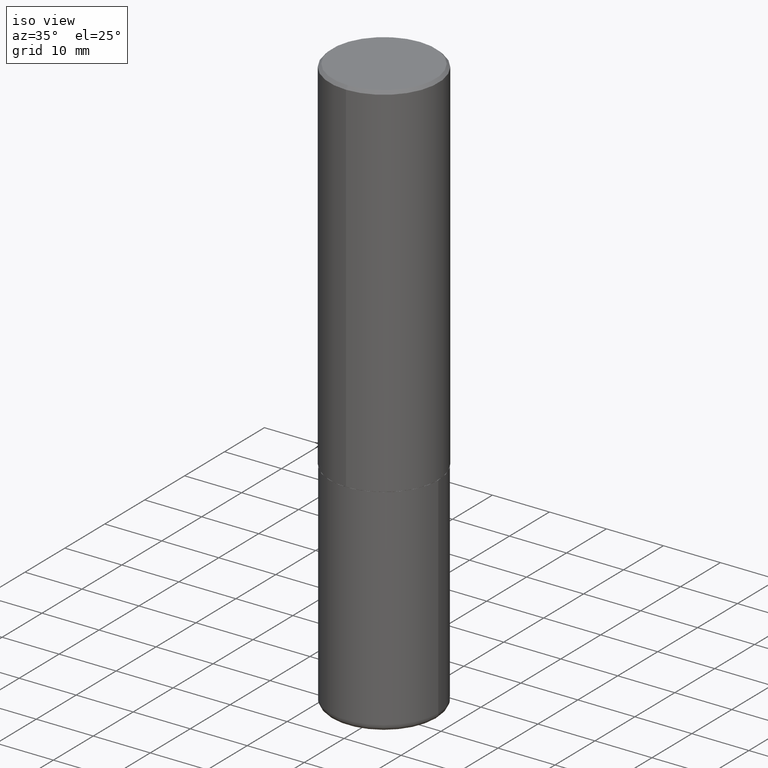
[diagram: clean part render]
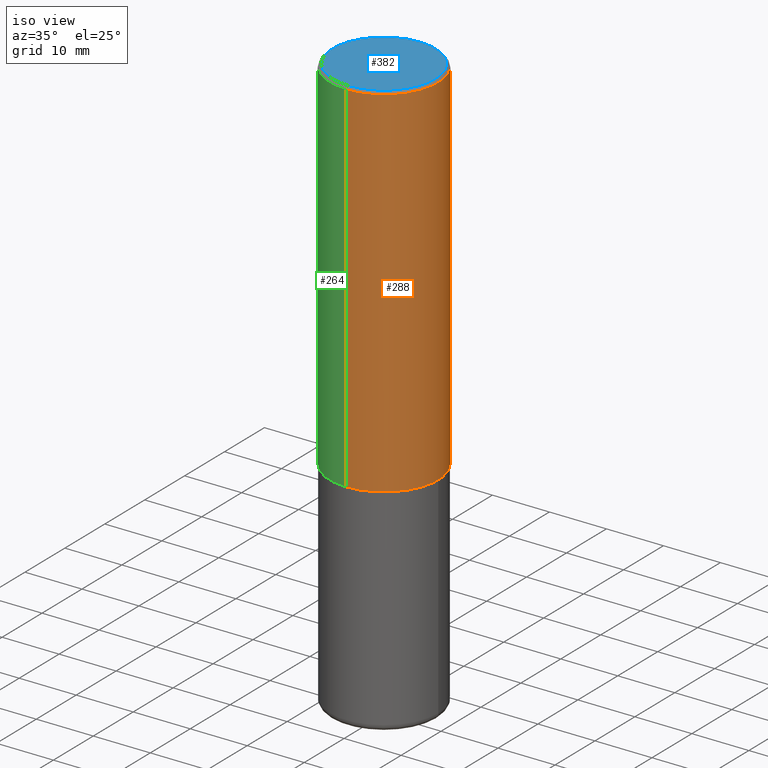
[diagram: same view with three faces highlighted in distinct colors, each labeled with its STEP entity id]
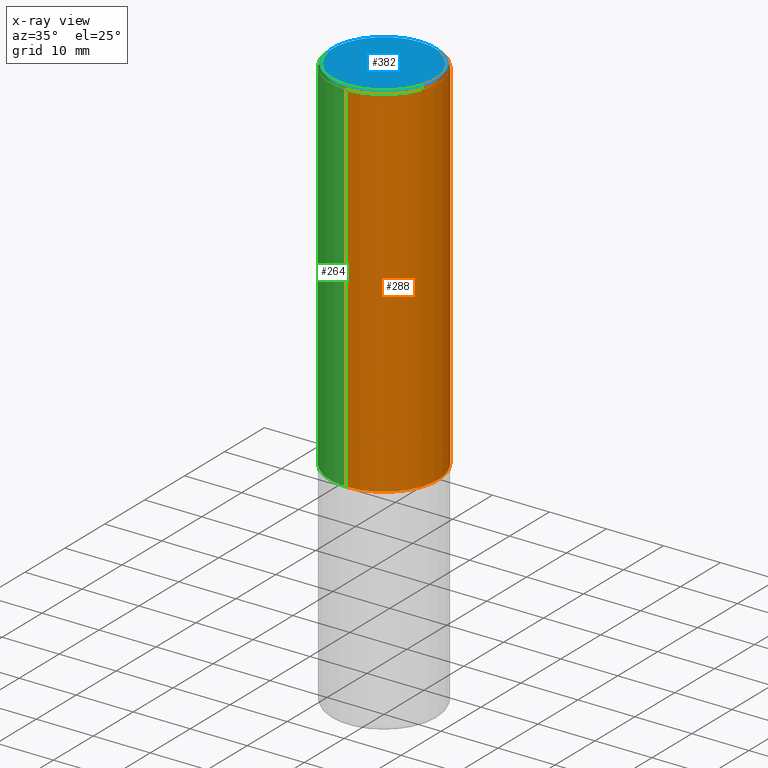
[diagram: x-ray of the same camera — body ghosted, the three highlighted faces saturated]
A machine part, iso view with three faces highlighted in distinct colors.
The next image is the same camera in x-ray (body ghosted, the three faces saturated) — at least one of them is partly hidden behind the body in this view.
Their STEP definitions:

[orange] entity #288 — the highlighted cylindrical surface (partial cylindrical patch) has radius 9.525 mm, axis along (-0, 0, 1).
#10 = CARTESIAN_POINT ( 'NONE',  ( 2.618611004132350411E-15, 0.3749999999999999445, -0.02000000000000139513 ) ) ;
#13 = CARTESIAN_POINT ( 'NONE',  ( 0.000000000000000000, 0.000000000000000000, 0.000000000000000000 ) ) ;
#37 = VERTEX_POINT ( 'NONE', #10 ) ;
#38 = ORIENTED_EDGE ( 'NONE', *, *, #179, .F. ) ;
#39 = VERTEX_POINT ( 'NONE', #77 ) ;
#40 = VECTOR ( 'NONE', #275, 39.37007874015748143 ) ;
#77 = CARTESIAN_POINT ( 'NONE',  ( -2.618611004132290852E-15, -0.3750000000000090483, -2.498999999999998778 ) ) ;
#93 = DIRECTION ( 'NONE',  ( -2.446218909101186334E-29, 3.490407148774155485E-15, 1.000000000000000000 ) ) ;
#112 = DIRECTION ( 'NONE',  ( -2.446218909101186334E-29, 3.490407148774155485E-15, 1.000000000000000000 ) ) ;
#114 = EDGE_CURVE ( 'NONE', #39, #144, #131, .T. ) ;
#116 = FACE_OUTER_BOUND ( 'NONE', #362, .T. ) ;
#126 = LINE ( 'NONE', #389, #383 ) ;
#131 = CIRCLE ( 'NONE', #399, 0.3750000000000002776 ) ;
#139 = DIRECTION ( 'NONE',  ( -6.982962677686266711E-15, -1.000000000000000000, 2.913971193241878794E-15 ) ) ;
#144 = VERTEX_POINT ( 'NONE', #201 ) ;
#179 = EDGE_CURVE ( 'NONE', #226, #37, #405, .T. ) ;
#201 = CARTESIAN_POINT ( 'NONE',  ( 2.664535259100408040E-15, 0.3749999999999915623, -2.499000000000000998 ) ) ;
#205 = CARTESIAN_POINT ( 'NONE',  ( -2.572686749164323547E-15, -0.3750000000000001110, -0.01999999999999877570 ) ) ;
#208 = DIRECTION ( 'NONE',  ( -6.982962677686266711E-15, -1.000000000000000000, 3.490407148774155091E-15 ) ) ;
#219 = DIRECTION ( 'NONE',  ( -6.982962677686265922E-15, -1.000000000000000000, 3.494488891895536035E-15 ) ) ;
#220 = EDGE_CURVE ( 'NONE', #144, #37, #126, .T. ) ;
#226 = VERTEX_POINT ( 'NONE', #205 ) ;
#239 = CARTESIAN_POINT ( 'NONE',  ( -2.618611004132351200E-15, -0.3750000000000001665, 1.308902680790308800E-15 ) ) ;
#244 = CYLINDRICAL_SURFACE ( 'NONE', #307, 0.3750000000000001665 ) ;
#260 = ORIENTED_EDGE ( 'NONE', *, *, #271, .F. ) ;
#265 = ORIENTED_EDGE ( 'NONE', *, *, #114, .T. ) ;
#271 = EDGE_CURVE ( 'NONE', #39, #226, #338, .T. ) ;
#275 = DIRECTION ( 'NONE',  ( -2.446218909101186334E-29, 3.490407148774155485E-15, 1.000000000000000000 ) ) ;
#288 = ADVANCED_FACE ( 'NONE', ( #116 ), #244, .T. ) ;
#300 = AXIS2_PLACEMENT_3D ( 'NONE', #317, #93, #219 ) ;
#307 = AXIS2_PLACEMENT_3D ( 'NONE', #13, #377, #208 ) ;
#317 = CARTESIAN_POINT ( 'NONE',  ( 4.892437818202393302E-31, -6.980814297548341687E-17, -0.02000000000000008715 ) ) ;
#338 = LINE ( 'NONE', #239, #40 ) ;
#362 = EDGE_LOOP ( 'NONE', ( #265, #367, #38, #260 ) ) ;
#367 = ORIENTED_EDGE ( 'NONE', *, *, #220, .T. ) ;
#377 = DIRECTION ( 'NONE',  ( -2.446218909101186334E-29, 3.490407148774155485E-15, 1.000000000000000000 ) ) ;
#378 = CARTESIAN_POINT ( 'NONE',  ( 6.113101053843864340E-29, -8.722527464786612949E-15, -2.498999999999999666 ) ) ;
#383 = VECTOR ( 'NONE', #112, 39.37007874015748143 ) ;
#389 = CARTESIAN_POINT ( 'NONE',  ( 2.664535259100376486E-15, 0.3750000000000001665, -1.308902680790308800E-15 ) ) ;
#399 = AXIS2_PLACEMENT_3D ( 'NONE', #378, #406, #139 ) ;
#405 = CIRCLE ( 'NONE', #300, 0.3750000000000000555 ) ;
#406 = DIRECTION ( 'NONE',  ( -2.446218909101186334E-29, 3.490407148774155485E-15, 1.000000000000000000 ) ) ;

[blue] entity #382 — the highlighted planar face has unit normal (0, -0, -1).
#4 = AXIS2_PLACEMENT_3D ( 'NONE', #88, #50, #18 ) ;
#8 = VERTEX_POINT ( 'NONE', #113 ) ;
#18 = DIRECTION ( 'NONE',  ( -6.982962677686265922E-15, -1.000000000000000000, 3.490407148774155485E-15 ) ) ;
#23 = DIRECTION ( 'NONE',  ( -2.446218909101186334E-29, 3.490407148774155485E-15, 1.000000000000000000 ) ) ;
#50 = DIRECTION ( 'NONE',  ( -2.446218909101186334E-29, 3.490407148774155485E-15, 1.000000000000000000 ) ) ;
#61 = CARTESIAN_POINT ( 'NONE',  ( 2.478951750578626181E-15, 0.3550000000000002598, -1.371609093745184381E-15 ) ) ;
#66 = EDGE_CURVE ( 'NONE', #8, #299, #156, .T. ) ;
#70 = CARTESIAN_POINT ( 'NONE',  ( 6.483192248959793905E-45, -9.250595066719118931E-31, -2.650291118607169846E-16 ) ) ;
#88 = CARTESIAN_POINT ( 'NONE',  ( 6.483192248959793905E-45, -9.250595066719118931E-31, -2.650291118607169846E-16 ) ) ;
#96 = PLANE ( 'NONE',  #366 ) ;
#113 = CARTESIAN_POINT ( 'NONE',  ( 2.548781377355488296E-15, 0.3550000000000002598, -1.504123649675543292E-15 ) ) ;
#125 = FACE_OUTER_BOUND ( 'NONE', #290, .T. ) ;
#156 = CIRCLE ( 'NONE', #4, 0.3550000000000002598 ) ;
#169 = CIRCLE ( 'NONE', #186, 0.3550000000000002598 ) ;
#175 = CARTESIAN_POINT ( 'NONE',  ( -2.504081769186609399E-15, -0.3550000000000002598, 9.740654259541092244E-16 ) ) ;
#186 = AXIS2_PLACEMENT_3D ( 'NONE', #70, #23, #370 ) ;
#214 = DIRECTION ( 'NONE',  ( 6.982962677686265922E-15, 1.000000000000000000, -3.490407148774155485E-15 ) ) ;
#247 = EDGE_CURVE ( 'NONE', #299, #8, #169, .T. ) ;
#261 = ORIENTED_EDGE ( 'NONE', *, *, #247, .T. ) ;
#290 = EDGE_LOOP ( 'NONE', ( #398, #261 ) ) ;
#299 = VERTEX_POINT ( 'NONE', #175 ) ;
#366 = AXIS2_PLACEMENT_3D ( 'NONE', #61, #388, #214 ) ;
#370 = DIRECTION ( 'NONE',  ( -6.982962677686265922E-15, -1.000000000000000000, 3.490407148774155485E-15 ) ) ;
#382 = ADVANCED_FACE ( 'NONE', ( #125 ), #96, .F. ) ;
#388 = DIRECTION ( 'NONE',  ( 2.446218909101186054E-29, -3.490407148774155485E-15, -1.000000000000000000 ) ) ;
#398 = ORIENTED_EDGE ( 'NONE', *, *, #66, .T. ) ;

[green] entity #264 — the highlighted cylindrical surface (partial cylindrical patch) has radius 9.525 mm, axis along (-0, 0, 1).
#5 = AXIS2_PLACEMENT_3D ( 'NONE', #157, #190, #75 ) ;
#10 = CARTESIAN_POINT ( 'NONE',  ( 2.618611004132350411E-15, 0.3749999999999999445, -0.02000000000000139513 ) ) ;
#37 = VERTEX_POINT ( 'NONE', #10 ) ;
#39 = VERTEX_POINT ( 'NONE', #77 ) ;
#40 = VECTOR ( 'NONE', #275, 39.37007874015748143 ) ;
#48 = CIRCLE ( 'NONE', #333, 0.3750000000000002776 ) ;
#56 = CIRCLE ( 'NONE', #5, 0.3750000000000000555 ) ;
#75 = DIRECTION ( 'NONE',  ( -6.982962677686265922E-15, -1.000000000000000000, 3.494488891895536035E-15 ) ) ;
#76 = CARTESIAN_POINT ( 'NONE',  ( 0.000000000000000000, 0.000000000000000000, 0.000000000000000000 ) ) ;
#77 = CARTESIAN_POINT ( 'NONE',  ( -2.618611004132290852E-15, -0.3750000000000090483, -2.498999999999998778 ) ) ;
#80 = CYLINDRICAL_SURFACE ( 'NONE', #227, 0.3750000000000001665 ) ;
#104 = ORIENTED_EDGE ( 'NONE', *, *, #346, .F. ) ;
#112 = DIRECTION ( 'NONE',  ( -2.446218909101186334E-29, 3.490407148774155485E-15, 1.000000000000000000 ) ) ;
#126 = LINE ( 'NONE', #389, #383 ) ;
#132 = EDGE_LOOP ( 'NONE', ( #301, #297, #371, #104 ) ) ;
#144 = VERTEX_POINT ( 'NONE', #201 ) ;
#157 = CARTESIAN_POINT ( 'NONE',  ( 4.892437818202393302E-31, -6.980814297548341687E-17, -0.02000000000000008715 ) ) ;
#172 = CARTESIAN_POINT ( 'NONE',  ( 6.113101053843864340E-29, -8.722527464786612949E-15, -2.498999999999999666 ) ) ;
#190 = DIRECTION ( 'NONE',  ( -2.446218909101186334E-29, 3.490407148774155485E-15, 1.000000000000000000 ) ) ;
#197 = DIRECTION ( 'NONE',  ( -2.446218909101186334E-29, 3.490407148774155485E-15, 1.000000000000000000 ) ) ;
#201 = CARTESIAN_POINT ( 'NONE',  ( 2.664535259100408040E-15, 0.3749999999999915623, -2.499000000000000998 ) ) ;
#205 = CARTESIAN_POINT ( 'NONE',  ( -2.572686749164323547E-15, -0.3750000000000001110, -0.01999999999999877570 ) ) ;
#220 = EDGE_CURVE ( 'NONE', #144, #37, #126, .T. ) ;
#226 = VERTEX_POINT ( 'NONE', #205 ) ;
#227 = AXIS2_PLACEMENT_3D ( 'NONE', #76, #197, #402 ) ;
#239 = CARTESIAN_POINT ( 'NONE',  ( -2.618611004132351200E-15, -0.3750000000000001665, 1.308902680790308800E-15 ) ) ;
#264 = ADVANCED_FACE ( 'NONE', ( #273 ), #80, .T. ) ;
#271 = EDGE_CURVE ( 'NONE', #39, #226, #338, .T. ) ;
#273 = FACE_OUTER_BOUND ( 'NONE', #132, .T. ) ;
#275 = DIRECTION ( 'NONE',  ( -2.446218909101186334E-29, 3.490407148774155485E-15, 1.000000000000000000 ) ) ;
#277 = EDGE_CURVE ( 'NONE', #144, #39, #48, .T. ) ;
#297 = ORIENTED_EDGE ( 'NONE', *, *, #277, .T. ) ;
#301 = ORIENTED_EDGE ( 'NONE', *, *, #220, .F. ) ;
#302 = DIRECTION ( 'NONE',  ( -2.446218909101186334E-29, 3.490407148774155485E-15, 1.000000000000000000 ) ) ;
#333 = AXIS2_PLACEMENT_3D ( 'NONE', #172, #302, #340 ) ;
#338 = LINE ( 'NONE', #239, #40 ) ;
#340 = DIRECTION ( 'NONE',  ( -6.982962677686266711E-15, -1.000000000000000000, 2.913971193241878794E-15 ) ) ;
#346 = EDGE_CURVE ( 'NONE', #37, #226, #56, .T. ) ;
#371 = ORIENTED_EDGE ( 'NONE', *, *, #271, .T. ) ;
#383 = VECTOR ( 'NONE', #112, 39.37007874015748143 ) ;
#389 = CARTESIAN_POINT ( 'NONE',  ( 2.664535259100376486E-15, 0.3750000000000001665, -1.308902680790308800E-15 ) ) ;
#402 = DIRECTION ( 'NONE',  ( -6.982962677686266711E-15, -1.000000000000000000, 3.490407148774155091E-15 ) ) ;